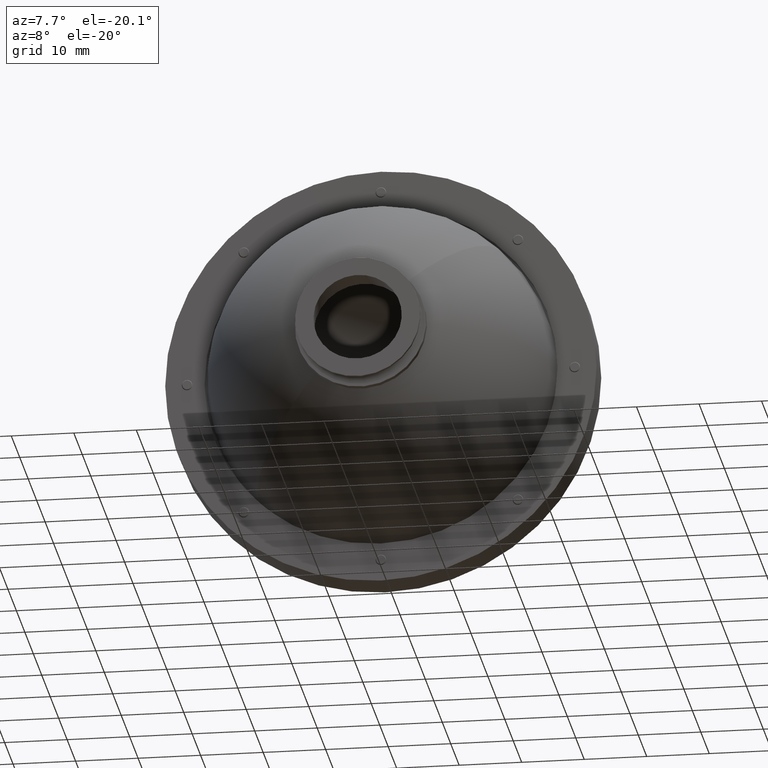
[diagram: clean part render]
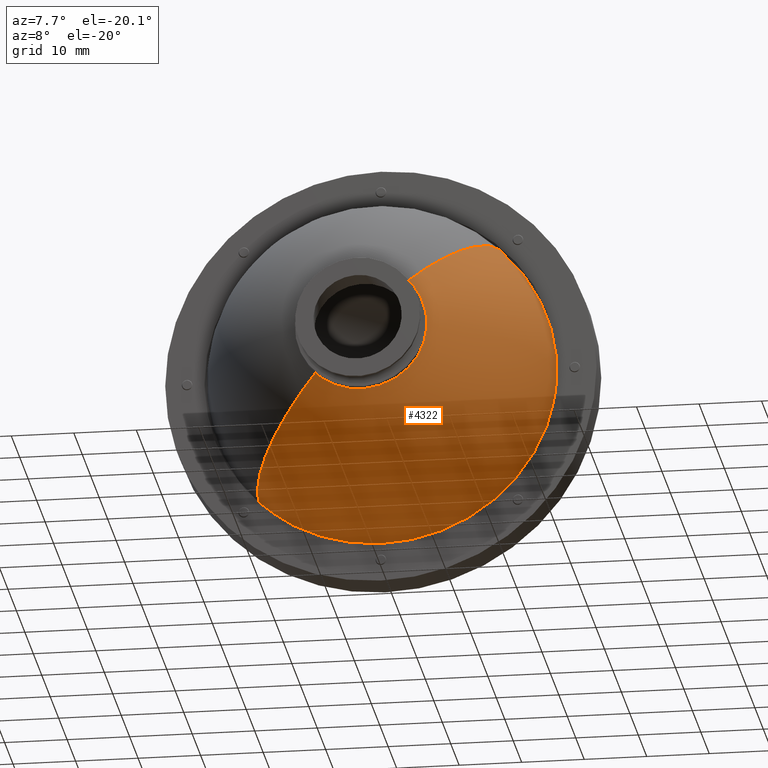
[diagram: same view with one face highlighted and labeled with its STEP entity id]
A machine part, auxiliary view. The second image highlights one B-rep face of the part: STEP entity #4322.
In plain terms, the highlighted spherical surface has radius 28 mm.
Its self-contained STEP definition (entity closure, byte-faithful):
#24 = ORIENTED_EDGE ( 'NONE', *, *, #1857, .T. ) ;
#62 = AXIS2_PLACEMENT_3D ( 'NONE', #4450, #3171, #1962 ) ;
#443 = CARTESIAN_POINT ( 'NONE',  ( 8.484018949608307381, -18.31086588718419605, 0.000000000000000000 ) ) ;
#542 = CIRCLE ( 'NONE', #1876, 28.00000000000000000 ) ;
#1155 = DIRECTION ( 'NONE',  ( 0.7071067811865364705, 0.000000000000000000, 0.7071067811865585639 ) ) ;
#1501 = EDGE_LOOP ( 'NONE', ( #3731, #2453, #24, #4060 ) ) ;
#1516 = CIRCLE ( 'NONE', #62, 28.00000000000000000 ) ;
#1820 = DIRECTION ( 'NONE',  ( -0.7071067811865585639, 0.000000000000000000, 0.7071067811865364705 ) ) ;
#1857 = EDGE_CURVE ( 'NONE', #6838, #3155, #5578, .T. ) ;
#1875 = AXIS2_PLACEMENT_3D ( 'NONE', #4798, #2351, #6695 ) ;
#1876 = AXIS2_PLACEMENT_3D ( 'NONE', #443, #1820, #1155 ) ;
#1962 = DIRECTION ( 'NONE',  ( -0.7071067811865363595, 0.000000000000000000, -0.7071067811865586750 ) ) ;
#2058 = AXIS2_PLACEMENT_3D ( 'NONE', #5440, #6026, #7169 ) ;
#2351 = DIRECTION ( 'NONE',  ( 0.7071067811865585639, 0.000000000000000000, -0.7071067811865364705 ) ) ;
#2453 = ORIENTED_EDGE ( 'NONE', *, *, #6021, .T. ) ;
#3155 = VERTEX_POINT ( 'NONE', #3225 ) ;
#3171 = DIRECTION ( 'NONE',  ( 0.7071067811865586750, 0.000000000000000000, -0.7071067811865363595 ) ) ;
#3225 = CARTESIAN_POINT ( 'NONE',  ( 28.25457786937555937, -19.81086588718419961, 19.77055891976786839 ) ) ;
#3390 = VERTEX_POINT ( 'NONE', #4171 ) ;
#3399 = CARTESIAN_POINT ( 'NONE',  ( 8.484018949608307381, -44.46425954842823813, 0.000000000000000000 ) ) ;
#3731 = ORIENTED_EDGE ( 'NONE', *, *, #5469, .F. ) ;
#4060 = ORIENTED_EDGE ( 'NONE', *, *, #5052, .F. ) ;
#4171 = CARTESIAN_POINT ( 'NONE',  ( 1.412951137742900043, -44.46425954842823813, -7.071067811865630937 ) ) ;
#4322 = ADVANCED_FACE ( 'NONE', ( #4869 ), #7379, .T. ) ;
#4450 = CARTESIAN_POINT ( 'NONE',  ( 8.484018949608307381, -18.31086588718419605, 0.000000000000000000 ) ) ;
#4623 = VERTEX_POINT ( 'NONE', #4770 ) ;
#4770 = CARTESIAN_POINT ( 'NONE',  ( 15.55508676147371716, -44.46425954842823813, 7.071067811865630937 ) ) ;
#4798 = CARTESIAN_POINT ( 'NONE',  ( 8.484018949608307381, -18.31086588718419605, 0.000000000000000000 ) ) ;
#4869 = FACE_OUTER_BOUND ( 'NONE', #1501, .T. ) ;
#5052 = EDGE_CURVE ( 'NONE', #4623, #3155, #542, .T. ) ;
#5146 = CIRCLE ( 'NONE', #6730, 10.00000000000001776 ) ;
#5440 = CARTESIAN_POINT ( 'NONE',  ( 8.484018949608307381, -19.81086588718419961, 0.000000000000000000 ) ) ;
#5469 = EDGE_CURVE ( 'NONE', #3390, #4623, #5146, .T. ) ;
#5578 = CIRCLE ( 'NONE', #2058, 27.95979256003167635 ) ;
#5869 = CARTESIAN_POINT ( 'NONE',  ( -11.28653997015894106, -19.81086588718419961, -19.77055891976787194 ) ) ;
#6021 = EDGE_CURVE ( 'NONE', #3390, #6838, #1516, .T. ) ;
#6026 = DIRECTION ( 'NONE',  ( -0.000000000000000000, -1.000000000000000000, -0.000000000000000000 ) ) ;
#6440 = DIRECTION ( 'NONE',  ( -0.7071067811865585639, 0.000000000000000000, 0.7071067811865364705 ) ) ;
#6695 = DIRECTION ( 'NONE',  ( 0.7071067811865364705, 0.000000000000000000, 0.7071067811865585639 ) ) ;
#6730 = AXIS2_PLACEMENT_3D ( 'NONE', #3399, #7675, #6440 ) ;
#6838 = VERTEX_POINT ( 'NONE', #5869 ) ;
#7169 = DIRECTION ( 'NONE',  ( -0.7071067811865585639, 0.000000000000000000, 0.7071067811865365815 ) ) ;
#7379 = SPHERICAL_SURFACE ( 'NONE', #1875, 28.00000000000000000 ) ;
#7675 = DIRECTION ( 'NONE',  ( -0.000000000000000000, -1.000000000000000000, -0.000000000000000000 ) ) ;